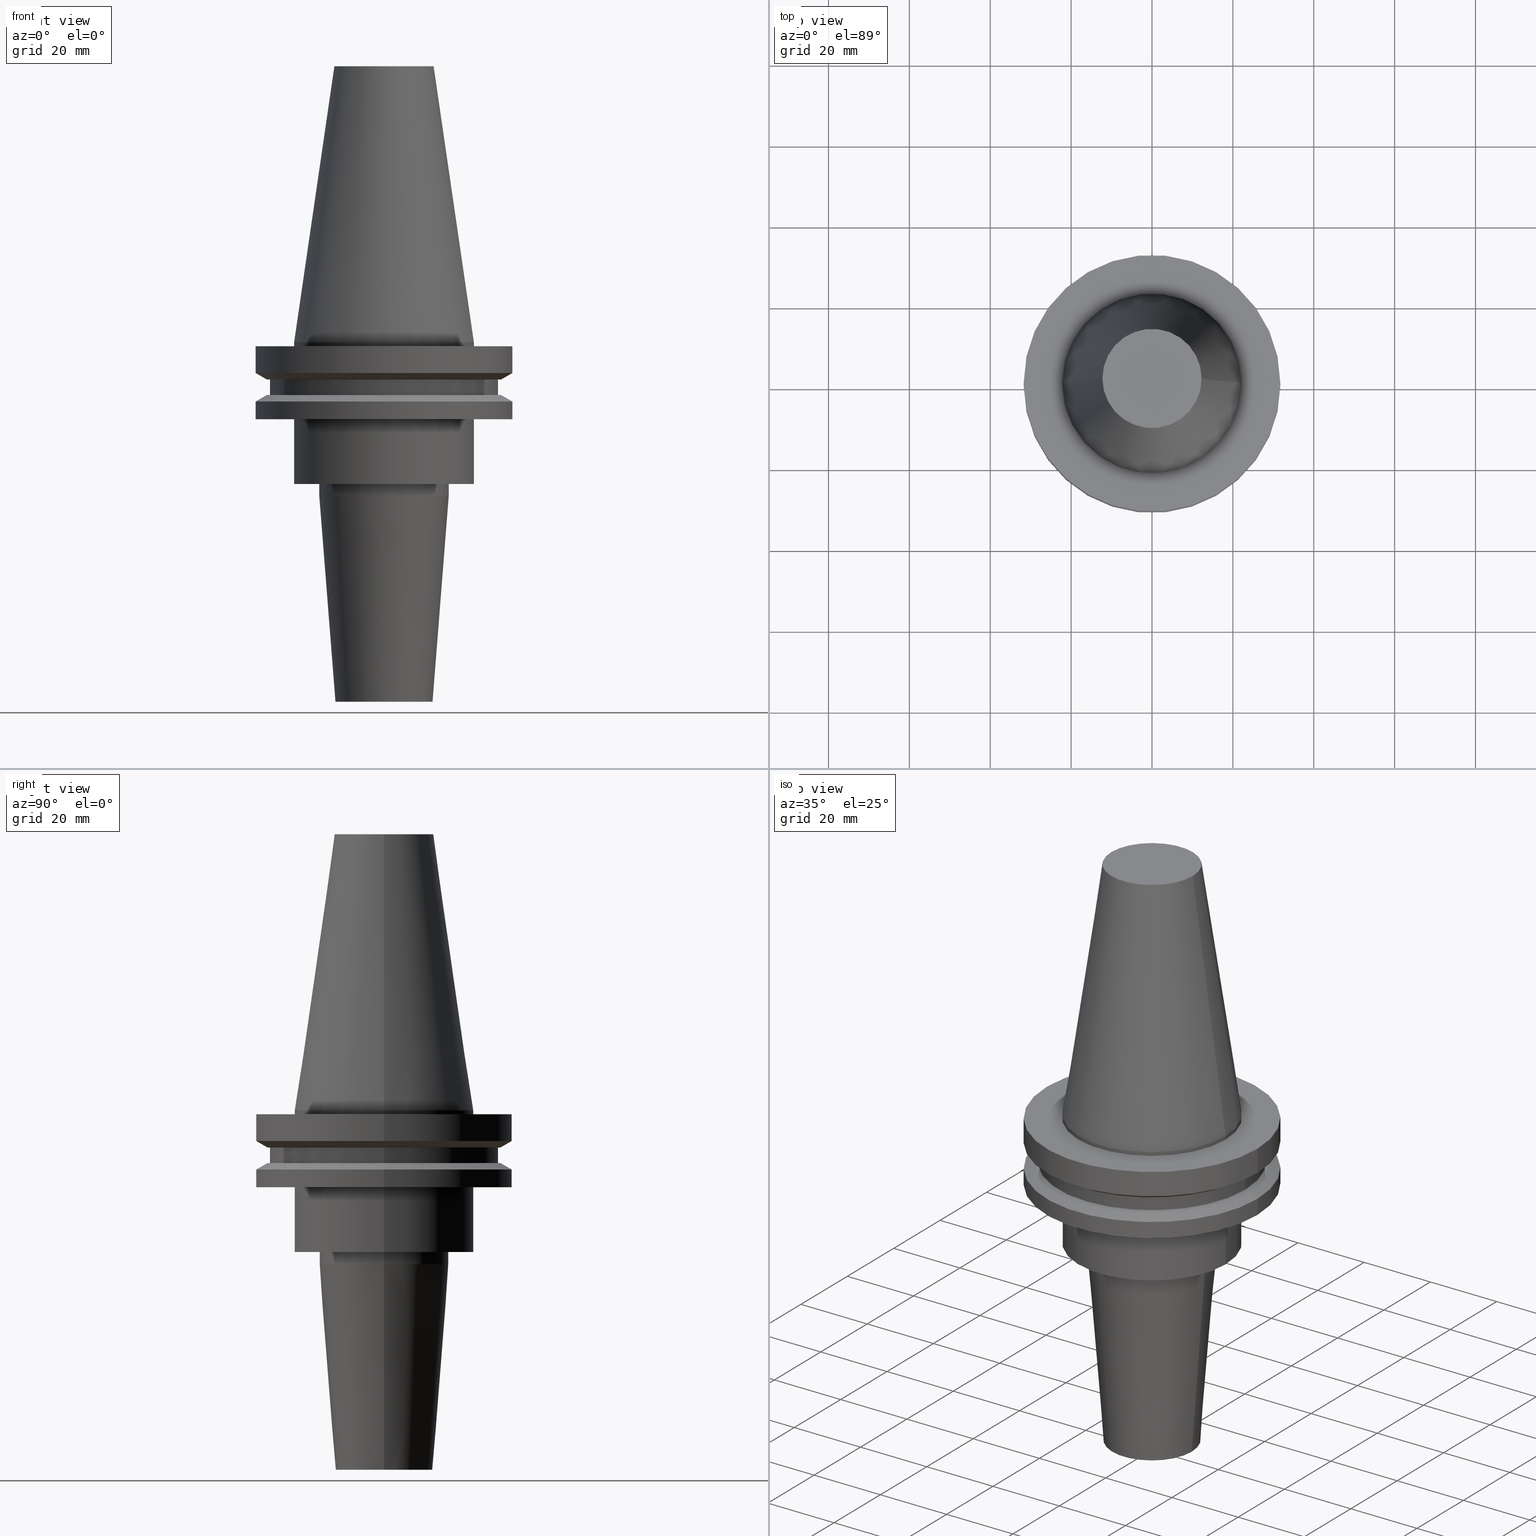
[diagram: canonical four-view strip — front | top / right | iso, engineering-drawing reading convention]
A machine part, canonical four-view strip (front | top / right | iso — engineering-drawing reading convention). The complete STEP part file that produces these views, byte-faithful:
ISO-10303-21;
HEADER;
FILE_DESCRIPTION (( 'STEP AP203' ),
    '1' );
FILE_NAME ('BCV40-SF_500-3_5.STEP',
    '2022-02-23T17:22:28',
    ( '' ),
    ( '' ),
    'SwSTEP 2.0',
    'SolidWorks 2021',
    '' );
FILE_SCHEMA (( 'CONFIG_CONTROL_DESIGN' ));
ENDSEC;

DATA;
#1 = CARTESIAN_POINT ( 'NONE',  ( 0.000000000000000000, 0.000000000000000000, -14.65472339340266572 ) ) ;
#2 = LINE ( 'NONE', #652, #561 ) ;
#3 = ORIENTED_EDGE ( 'NONE', *, *, #603, .T. ) ;
#4 = CARTESIAN_POINT ( 'NONE',  ( 28.17999999999999972, 0.000000000000000000, 68.25000000000000000 ) ) ;
#5 = EDGE_CURVE ( 'NONE', #88, #25, #452, .T. ) ;
#6 = ORIENTED_EDGE ( 'NONE', *, *, #629, .T. ) ;
#7 = CARTESIAN_POINT ( 'NONE',  ( -28.97919780457007732, 3.548928183322474856E-15, -9.205000000000005400 ) ) ;
#8 = PERSON ( 'UNSPECIFIED', 'UNSPECIFIED', 'UNSPECIFIED', ('UNSPECIFIED'), ('UNSPECIFIED'), ('UNSPECIFIED') ) ;
#9 = AXIS2_PLACEMENT_3D ( 'NONE', #198, #134, #456 ) ;
#11 = CONICAL_SURFACE ( 'NONE', #491, 31.75000000000000000, 1.047197551196597853 ) ;
#10 = AXIS2_PLACEMENT_3D ( 'NONE', #340, #147, #203 ) ;
#12 = ORIENTED_EDGE ( 'NONE', *, *, #830, .F. ) ;
#13 = ORGANIZATION ( 'UNSPECIFIED', 'UNSPECIFIED', '' ) ;
#14 = EDGE_CURVE ( 'NONE', #243, #396, #55, .T. ) ;
#15 = CARTESIAN_POINT ( 'NONE',  ( 0.000000000000000000, 0.000000000000000000, 68.25000000000000000 ) ) ;
#16 = EDGE_LOOP ( 'NONE', ( #647, #343, #584, #256 ) ) ;
#17 = VECTOR ( 'NONE', #700, 1000.000000000000000 ) ;
#18 = CARTESIAN_POINT ( 'NONE',  ( 0.000000000000000000, 0.000000000000000000, -9.204999999999991189 ) ) ;
#19 = PLANE ( 'NONE',  #759 ) ;
#20 = VERTEX_POINT ( 'NONE', #179 ) ;
#21 = DIRECTION ( 'NONE',  ( 1.000000000000000000, 0.000000000000000000, 0.000000000000000000 ) ) ;
#22 = DIRECTION ( 'NONE',  ( -0.000000000000000000, -0.000000000000000000, 1.000000000000000000 ) ) ;
#23 = CC_DESIGN_DATE_AND_TIME_ASSIGNMENT ( #316, #778, ( #54 ) ) ;
#24 = VECTOR ( 'NONE', #831, 1000.000000000000000 ) ;
#25 = VERTEX_POINT ( 'NONE', #770 ) ;
#26 = CIRCLE ( 'NONE', #190, 16.00000000000000000 ) ;
#27 = DIRECTION ( 'NONE',  ( -0.000000000000000000, -0.000000000000000000, 1.000000000000000000 ) ) ;
#28 = DIRECTION ( 'NONE',  ( -1.000000000000000000, 0.000000000000000000, -0.000000000000000000 ) ) ;
#29 = VERTEX_POINT ( 'NONE', #834 ) ;
#30 = COORDINATED_UNIVERSAL_TIME_OFFSET ( 6, 0, .BEHIND. ) ;
#31 = AXIS2_PLACEMENT_3D ( 'NONE', #847, #444, #188 ) ;
#32 = CARTESIAN_POINT ( 'NONE',  ( 0.000000000000000000, 0.000000000000000000, -52.89999999999999858 ) ) ;
#33 = ORIENTED_EDGE ( 'NONE', *, *, #124, .F. ) ;
#34 = CARTESIAN_POINT ( 'NONE',  ( 0.000000000000000000, 0.000000000000000000, -7.605276606597335842 ) ) ;
#35 = CARTESIAN_POINT ( 'NONE',  ( 0.000000000000000000, 0.000000000000000000, 0.000000000000000000 ) ) ;
#36 = DIRECTION ( 'NONE',  ( 1.000000000000000000, 0.000000000000000000, 0.000000000000000000 ) ) ;
#37 = ORIENTED_EDGE ( 'NONE', *, *, #390, .T. ) ;
#38 = CIRCLE ( 'NONE', #78, 28.17999999999999972 ) ;
#39 = EDGE_CURVE ( 'NONE', #569, #396, #223, .T. ) ;
#40 = CARTESIAN_POINT ( 'NONE',  ( 0.000000000000000000, 0.000000000000000000, -35.04999999999999716 ) ) ;
#41 = DIRECTION ( 'NONE',  ( 1.000000000000000000, 0.000000000000000000, 0.000000000000000000 ) ) ;
#42 = CIRCLE ( 'NONE', #107, 12.27178102086201150 ) ;
#43 = EDGE_LOOP ( 'NONE', ( #206, #590, #505, #366 ) ) ;
#44 = DIRECTION ( 'NONE',  ( 1.000000000000000000, 0.000000000000000000, 0.000000000000000000 ) ) ;
#45 = FACE_BOUND ( 'NONE', #535, .T. ) ;
#46 = CARTESIAN_POINT ( 'NONE',  ( 28.97919780457007732, 0.000000000000000000, -9.205000000000005400 ) ) ;
#47 = ORIENTED_EDGE ( 'NONE', *, *, #124, .T. ) ;
#48 = APPROVAL_STATUS ( 'not_yet_approved' ) ;
#49 = CARTESIAN_POINT ( 'NONE',  ( -22.22500000000000142, 2.721777511104992849E-15, -19.04999999999999716 ) ) ;
#50 = EDGE_CURVE ( 'NONE', #372, #656, #250, .T. ) ;
#51 = CARTESIAN_POINT ( 'NONE',  ( 22.22500000000000142, 2.721777511104992849E-15, 0.000000000000000000 ) ) ;
#52 = EDGE_LOOP ( 'NONE', ( #720, #753 ) ) ;
#53 = LINE ( 'NONE', #196, #626 ) ;
#54 = SECURITY_CLASSIFICATION ( '', '', #184 ) ;
#55 = LINE ( 'NONE', #51, #595 ) ;
#56 = ORIENTED_EDGE ( 'NONE', *, *, #582, .F. ) ;
#57 = FACE_OUTER_BOUND ( 'NONE', #597, .T. ) ;
#58 = ORIENTED_EDGE ( 'NONE', *, *, #60, .F. ) ;
#59 = ORIENTED_EDGE ( 'NONE', *, *, #5, .F. ) ;
#60 = EDGE_CURVE ( 'NONE', #372, #29, #399, .T. ) ;
#61 = DIRECTION ( 'NONE',  ( 1.000000000000000000, 0.000000000000000000, 0.000000000000000000 ) ) ;
#62 = LINE ( 'NONE', #565, #24 ) ;
#63 = FACE_OUTER_BOUND ( 'NONE', #16, .T. ) ;
#64 = EDGE_LOOP ( 'NONE', ( #551, #47, #697, #422 ) ) ;
#65 = CIRCLE ( 'NONE', #433, 22.22500000000000142 ) ;
#66 = EDGE_CURVE ( 'NONE', #396, #569, #842, .T. ) ;
#67 = DIRECTION ( 'NONE',  ( -0.000000000000000000, -0.000000000000000000, 1.000000000000000000 ) ) ;
#68 = CARTESIAN_POINT ( 'NONE',  ( 0.000000000000000000, 0.000000000000000000, -1.000000000000000888 ) ) ;
#69 = VERTEX_POINT ( 'NONE', #439 ) ;
#70 = AXIS2_PLACEMENT_3D ( 'NONE', #611, #265, #220 ) ;
#71 = DIRECTION ( 'NONE',  ( -0.000000000000000000, -0.000000000000000000, 1.000000000000000000 ) ) ;
#72 = ORIENTED_EDGE ( 'NONE', *, *, #302, .T. ) ;
#73 = DIRECTION ( 'NONE',  ( -0.000000000000000000, -0.000000000000000000, 1.000000000000000000 ) ) ;
#74 = ADVANCED_FACE ( 'NONE', ( #695 ), #579, .T. ) ;
#75 = UNCERTAINTY_MEASURE_WITH_UNIT (LENGTH_MEASURE( 1.000000000000000082E-05 ), #294, 'distance_accuracy_value', 'NONE');
#76 = EDGE_LOOP ( 'NONE', ( #772, #685, #777, #403 ) ) ;
#77 = DIRECTION ( 'NONE',  ( 0.000000000000000000, 0.000000000000000000, -1.000000000000000000 ) ) ;
#78 = AXIS2_PLACEMENT_3D ( 'NONE', #649, #583, #775 ) ;
#79 = ORIENTED_EDGE ( 'NONE', *, *, #552, .F. ) ;
#80 = AXIS2_PLACEMENT_3D ( 'NONE', #549, #747, #628 ) ;
#81 = DIRECTION ( 'NONE',  ( 1.000000000000000000, 0.000000000000000000, 0.000000000000000000 ) ) ;
#82 = CARTESIAN_POINT ( 'NONE',  ( 12.27178102086201150, 2.112318622904291439E-15, 68.25000000000000000 ) ) ;
#83 = EDGE_LOOP ( 'NONE', ( #338, #125 ) ) ;
#84 = EDGE_CURVE ( 'NONE', #270, #497, #98, .T. ) ;
#85 = ADVANCED_FACE ( 'NONE', ( #512, #447 ), #123, .F. ) ;
#86 = DIRECTION ( 'NONE',  ( -1.000000000000000000, 0.000000000000000000, 0.000000000000000000 ) ) ;
#87 = FACE_BOUND ( 'NONE', #636, .T. ) ;
#88 = VERTEX_POINT ( 'NONE', #516 ) ;
#89 = LINE ( 'NONE', #801, #119 ) ;
#90 = ORIENTED_EDGE ( 'NONE', *, *, #166, .T. ) ;
#91 = AXIS2_PLACEMENT_3D ( 'NONE', #15, #278, #536 ) ;
#92 = DIRECTION ( 'NONE',  ( 0.000000000000000000, 0.000000000000000000, 1.000000000000000000 ) ) ;
#93 = DIRECTION ( 'NONE',  ( 0.000000000000000000, 0.000000000000000000, -1.000000000000000000 ) ) ;
#94 = ADVANCED_FACE ( 'NONE', ( #239 ), #781, .F. ) ;
#95 = EDGE_LOOP ( 'NONE', ( #79, #797 ) ) ;
#96 = CARTESIAN_POINT ( 'NONE',  ( 0.000000000000000000, 0.000000000000000000, 0.000000000000000000 ) ) ;
#97 = DATE_AND_TIME ( #494, #669 ) ;
#98 = CIRCLE ( 'NONE', #307, 28.17999999999999972 ) ;
#99 = CARTESIAN_POINT ( 'NONE',  ( 31.74999999999999289, 0.000000000000000000, -19.04999999999999716 ) ) ;
#100 = ORIENTED_EDGE ( 'NONE', *, *, #281, .T. ) ;
#101 = EDGE_CURVE ( 'NONE', #167, #357, #763, .T. ) ;
#102 = AXIS2_PLACEMENT_3D ( 'NONE', #719, #807, #214 ) ;
#103 = DIRECTION ( 'NONE',  ( -0.000000000000000000, -0.000000000000000000, 1.000000000000000000 ) ) ;
#104 = DIRECTION ( 'NONE',  ( -1.000000000000000000, 0.000000000000000000, 0.000000000000000000 ) ) ;
#105 = ORIENTED_EDGE ( 'NONE', *, *, #721, .T. ) ;
#106 = LINE ( 'NONE', #234, #288 ) ;
#107 = AXIS2_PLACEMENT_3D ( 'NONE', #483, #821, #562 ) ;
#108 = CARTESIAN_POINT ( 'NONE',  ( 0.000000000000000000, 22.22499999999999787, -35.04999999999999716 ) ) ;
#109 = ORIENTED_EDGE ( 'NONE', *, *, #60, .T. ) ;
#110 = APPLICATION_PROTOCOL_DEFINITION ( 'international standard', 'config_control_design', 1994, #235 ) ;
#111 = EDGE_CURVE ( 'NONE', #663, #292, #623, .T. ) ;
#112 = DIRECTION ( 'NONE',  ( 1.000000000000000000, 0.000000000000000000, 0.000000000000000000 ) ) ;
#113 = DIRECTION ( 'NONE',  ( -0.000000000000000000, -0.000000000000000000, 1.000000000000000000 ) ) ;
#114 = ORIENTED_EDGE ( 'NONE', *, *, #398, .T. ) ;
#115 = PERSON_AND_ORGANIZATION_ROLE ( 'classification_officer' ) ;
#116 = CARTESIAN_POINT ( 'NONE',  ( 0.000000000000000000, 0.000000000000000000, -88.89999999999999147 ) ) ;
#117 = CARTESIAN_POINT ( 'NONE',  ( 0.000000000000000000, 0.000000000000000000, 0.000000000000000000 ) ) ;
#118 = VERTEX_POINT ( 'NONE', #640 ) ;
#119 = VECTOR ( 'NONE', #280, 1000.000000000000000 ) ;
#120 = DIRECTION ( 'NONE',  ( -0.000000000000000000, -0.000000000000000000, 1.000000000000000000 ) ) ;
#121 = LOCAL_TIME ( 11, 22, 28.00000000000000000, #321 ) ;
#122 = EDGE_CURVE ( 'NONE', #513, #118, #734, .T. ) ;
#123 = PLANE ( 'NONE',  #790 ) ;
#124 = EDGE_CURVE ( 'NONE', #332, #497, #62, .T. ) ;
#125 = ORIENTED_EDGE ( 'NONE', *, *, #486, .F. ) ;
#126 = DATE_AND_TIME ( #644, #823 ) ;
#127 = DIRECTION ( 'NONE',  ( -0.000000000000000000, -0.000000000000000000, 1.000000000000000000 ) ) ;
#128 = CARTESIAN_POINT ( 'NONE',  ( 0.000000000000000000, 0.000000000000000000, -1.000000000000000888 ) ) ;
#129 = ORIENTED_EDGE ( 'NONE', *, *, #413, .F. ) ;
#130 = EDGE_CURVE ( 'NONE', #485, #448, #65, .T. ) ;
#131 = PERSON_AND_ORGANIZATION_ROLE ( 'creator' ) ;
#132 = DIRECTION ( 'NONE',  ( 1.000000000000000000, 0.000000000000000000, 0.000000000000000000 ) ) ;
#133 = DIRECTION ( 'NONE',  ( -0.000000000000000000, -0.000000000000000000, 1.000000000000000000 ) ) ;
#134 = DIRECTION ( 'NONE',  ( -0.000000000000000000, -0.000000000000000000, 1.000000000000000000 ) ) ;
#135 = VERTEX_POINT ( 'NONE', #631 ) ;
#136 = APPROVAL_ROLE ( '' ) ;
#137 = FACE_OUTER_BOUND ( 'NONE', #272, .T. ) ;
#138 = AXIS2_PLACEMENT_3D ( 'NONE', #529, #377, #132 ) ;
#139 = AXIS2_PLACEMENT_3D ( 'NONE', #200, #263, #186 ) ;
#140 = VERTEX_POINT ( 'NONE', #46 ) ;
#141 = PLANE ( 'NONE',  #490 ) ;
#142 = CC_DESIGN_PERSON_AND_ORGANIZATION_ASSIGNMENT ( #297, #754, ( #368 ) ) ;
#143 = ORIENTED_EDGE ( 'NONE', *, *, #824, .F. ) ;
#144 = DIRECTION ( 'NONE',  ( 1.000000000000000000, 0.000000000000000000, 0.000000000000000000 ) ) ;
#145 = CONICAL_SURFACE ( 'NONE', #102, 12.00000000000000000, 0.07853981633973657062 ) ;
#146 = ORIENTED_EDGE ( 'NONE', *, *, #39, .T. ) ;
#147 = DIRECTION ( 'NONE',  ( 0.000000000000000000, 0.000000000000000000, -1.000000000000000000 ) ) ;
#148 = AXIS2_PLACEMENT_3D ( 'NONE', #567, #248, #438 ) ;
#149 = CIRCLE ( 'NONE', #148, 31.75000000000000000 ) ;
#150 = CARTESIAN_POINT ( 'NONE',  ( -16.00000000000000000, 1.959434878635765131E-15, 0.000000000000000000 ) ) ;
#151 = CIRCLE ( 'NONE', #723, 31.75000000000000000 ) ;
#152 = ORIENTED_EDGE ( 'NONE', *, *, #830, .T. ) ;
#153 = ADVANCED_FACE ( 'NONE', ( #197 ), #218, .T. ) ;
#154 = DIRECTION ( 'NONE',  ( -0.000000000000000000, -0.000000000000000000, 1.000000000000000000 ) ) ;
#155 = CARTESIAN_POINT ( 'NONE',  ( -31.75000000000000000, 3.888253587292846476E-15, 68.25000000000000000 ) ) ;
#156 = ORIENTED_EDGE ( 'NONE', *, *, #398, .F. ) ;
#157 = APPROVAL ( #713, 'UNSPECIFIED' ) ;
#158 = DIRECTION ( 'NONE',  ( -0.000000000000000000, -0.000000000000000000, 1.000000000000000000 ) ) ;
#159 = LINE ( 'NONE', #477, #416 ) ;
#160 = ORIENTED_EDGE ( 'NONE', *, *, #521, .F. ) ;
#161 = CARTESIAN_POINT ( 'NONE',  ( 12.00000000000000000, 0.000000000000000000, -88.89999999999999147 ) ) ;
#162 = CARTESIAN_POINT ( 'NONE',  ( 0.000000000000000000, 28.17999999999999972, -13.05499999999999794 ) ) ;
#163 = EDGE_LOOP ( 'NONE', ( #194, #585 ) ) ;
#164 = AXIS2_PLACEMENT_3D ( 'NONE', #213, #475, #21 ) ;
#165 = CARTESIAN_POINT ( 'NONE',  ( 0.000000000000000000, 0.000000000000000000, -14.65472339340266572 ) ) ;
#166 = EDGE_CURVE ( 'NONE', #20, #569, #853, .T. ) ;
#167 = VERTEX_POINT ( 'NONE', #455 ) ;
#168 = PERSON_AND_ORGANIZATION ( #8, #13 ) ;
#169 = CARTESIAN_POINT ( 'NONE',  ( -16.00000000000000000, 1.959434878635765131E-15, -35.04999999999999716 ) ) ;
#170 = EDGE_LOOP ( 'NONE', ( #768, #276 ) ) ;
#171 = DIRECTION ( 'NONE',  ( -0.8660254037844387076, 0.000000000000000000, -0.4999999999999998890 ) ) ;
#172 = CARTESIAN_POINT ( 'NONE',  ( 0.000000000000000000, 0.000000000000000000, -88.89999999999999147 ) ) ;
#173 = DIRECTION ( 'NONE',  ( -0.000000000000000000, -0.000000000000000000, 1.000000000000000000 ) ) ;
#174 = EDGE_CURVE ( 'NONE', #749, #140, #698, .T. ) ;
#175 = CIRCLE ( 'NONE', #381, 22.22500000000000142 ) ;
#176 =( NAMED_UNIT ( * ) SI_UNIT ( $, .STERADIAN. ) SOLID_ANGLE_UNIT ( ) );
#177 = CYLINDRICAL_SURFACE ( 'NONE', #484, 16.00000000000000000 ) ;
#178 = VECTOR ( 'NONE', #392, 999.9999999999998863 ) ;
#179 = CARTESIAN_POINT ( 'NONE',  ( -12.27178102086201150, 0.000000000000000000, 68.25000000000000000 ) ) ;
#180 = ORIENTED_EDGE ( 'NONE', *, *, #684, .T. ) ;
#181 = DIRECTION ( 'NONE',  ( -0.000000000000000000, -0.000000000000000000, 1.000000000000000000 ) ) ;
#182 = DIRECTION ( 'NONE',  ( 0.000000000000000000, -0.000000000000000000, 1.000000000000000000 ) ) ;
#183 = EDGE_LOOP ( 'NONE', ( #530, #72, #143, #160 ) ) ;
#184 = SECURITY_CLASSIFICATION_LEVEL ( 'unclassified' ) ;
#185 = ADVANCED_FACE ( 'NONE', ( #589 ), #418, .F. ) ;
#186 = DIRECTION ( 'NONE',  ( 1.000000000000000000, 0.000000000000000000, 0.000000000000000000 ) ) ;
#187 = EDGE_CURVE ( 'NONE', #88, #802, #249, .T. ) ;
#188 = DIRECTION ( 'NONE',  ( 1.000000000000000000, 0.000000000000000000, 0.000000000000000000 ) ) ;
#189 = ORIENTED_EDGE ( 'NONE', *, *, #684, .F. ) ;
#190 = AXIS2_PLACEMENT_3D ( 'NONE', #391, #840, #525 ) ;
#191 = CARTESIAN_POINT ( 'NONE',  ( 0.000000000000000000, 0.000000000000000000, 68.25000000000000000 ) ) ;
#192 = EDGE_CURVE ( 'NONE', #20, #243, #42, .T. ) ;
#193 = DIRECTION ( 'NONE',  ( 1.000000000000000000, 0.000000000000000000, 0.000000000000000000 ) ) ;
#194 = ORIENTED_EDGE ( 'NONE', *, *, #84, .T. ) ;
#195 = DATE_AND_TIME ( #581, #121 ) ;
#196 = CARTESIAN_POINT ( 'NONE',  ( -22.22500000000000142, 2.721777511104992849E-15, 68.25000000000000000 ) ) ;
#197 = FACE_OUTER_BOUND ( 'NONE', #453, .T. ) ;
#198 = CARTESIAN_POINT ( 'NONE',  ( 0.000000000000000000, 0.000000000000000000, 68.25000000000000000 ) ) ;
#199 = EDGE_LOOP ( 'NONE', ( #706, #666, #690, #632 ) ) ;
#200 = CARTESIAN_POINT ( 'NONE',  ( 0.000000000000000000, 0.000000000000000000, -9.205000000000005400 ) ) ;
#201 = ORIENTED_EDGE ( 'NONE', *, *, #762, .F. ) ;
#202 = EDGE_CURVE ( 'NONE', #716, #712, #232, .T. ) ;
#203 = DIRECTION ( 'NONE',  ( -1.000000000000000000, 0.000000000000000000, 0.000000000000000000 ) ) ;
#204 = AXIS2_PLACEMENT_3D ( 'NONE', #674, #664, #794 ) ;
#205 = CIRCLE ( 'NONE', #80, 6.349999999999994316 ) ;
#206 = ORIENTED_EDGE ( 'NONE', *, *, #252, .F. ) ;
#207 = CARTESIAN_POINT ( 'NONE',  ( -28.97919780457007732, 3.718590885307660666E-15, -9.205000000000005400 ) ) ;
#208 = ORIENTED_EDGE ( 'NONE', *, *, #101, .T. ) ;
#209 = FACE_OUTER_BOUND ( 'NONE', #745, .T. ) ;
#210 = EDGE_CURVE ( 'NONE', #712, #478, #696, .T. ) ;
#211 = DIRECTION ( 'NONE',  ( 1.000000000000000000, 0.000000000000000000, 0.000000000000000000 ) ) ;
#212 = ORIENTED_EDGE ( 'NONE', *, *, #824, .T. ) ;
#213 = CARTESIAN_POINT ( 'NONE',  ( 0.000000000000000000, 28.97919780457007732, -9.204999999999996518 ) ) ;
#214 = DIRECTION ( 'NONE',  ( 1.000000000000000000, 0.000000000000000000, 0.000000000000000000 ) ) ;
#215 = AXIS2_PLACEMENT_3D ( 'NONE', #395, #71, #333 ) ;
#216 = ADVANCED_FACE ( 'NONE', ( #87, #523 ), #748, .F. ) ;
#217 = EDGE_LOOP ( 'NONE', ( #400, #608 ) ) ;
#218 = CONICAL_SURFACE ( 'NONE', #423, 12.00000000000000000, 0.07853981633973657062 ) ;
#219 = DIRECTION ( 'NONE',  ( -1.000000000000000000, 0.000000000000000000, -0.000000000000000000 ) ) ;
#220 = DIRECTION ( 'NONE',  ( 1.000000000000000000, 0.000000000000000000, 0.000000000000000000 ) ) ;
#221 = ORIENTED_EDGE ( 'NONE', *, *, #281, .F. ) ;
#222 = DIRECTION ( 'NONE',  ( 1.000000000000000000, 0.000000000000000000, 0.000000000000000000 ) ) ;
#223 = CIRCLE ( 'NONE', #771, 22.22500000000000142 ) ;
#224 = CARTESIAN_POINT ( 'NONE',  ( 0.000000000000000000, 0.000000000000000000, -13.05499999999999794 ) ) ;
#225 = FACE_OUTER_BOUND ( 'NONE', #311, .T. ) ;
#226 = EDGE_LOOP ( 'NONE', ( #296, #843 ) ) ;
#227 = EDGE_CURVE ( 'NONE', #140, #88, #2, .T. ) ;
#228 = CARTESIAN_POINT ( 'NONE',  ( 0.000000000000000000, 6.349999999999994316, -52.89999999999999858 ) ) ;
#229 = DIRECTION ( 'NONE',  ( 1.000000000000000000, 0.000000000000000000, 0.000000000000000000 ) ) ;
#230 = ORIENTED_EDGE ( 'NONE', *, *, #293, .F. ) ;
#231 = AXIS2_PLACEMENT_3D ( 'NONE', #273, #77, #86 ) ;
#232 = LINE ( 'NONE', #827, #591 ) ;
#233 =( GEOMETRIC_REPRESENTATION_CONTEXT ( 3 ) GLOBAL_UNCERTAINTY_ASSIGNED_CONTEXT ( ( #75 ) ) GLOBAL_UNIT_ASSIGNED_CONTEXT ( ( #294, #373, #176 ) ) REPRESENTATION_CONTEXT ( 'NONE', 'WORKASPACE' ) );
#234 = CARTESIAN_POINT ( 'NONE',  ( 22.22500000000000142, 0.000000000000000000, 68.25000000000000000 ) ) ;
#235 = APPLICATION_CONTEXT ( 'configuration controlled 3d designs of mechanical parts and assemblies' ) ;
#236 = ORIENTED_EDGE ( 'NONE', *, *, #709, .T. ) ;
#237 = CARTESIAN_POINT ( 'NONE',  ( 28.97919780457008088, 3.718590885307660666E-15, -13.05499999999999794 ) ) ;
#238 = CC_DESIGN_PERSON_AND_ORGANIZATION_ASSIGNMENT ( #570, #131, ( #421 ) ) ;
#239 = FACE_OUTER_BOUND ( 'NONE', #555, .T. ) ;
#240 = DIRECTION ( 'NONE',  ( 1.000000000000000000, 0.000000000000000000, 0.000000000000000000 ) ) ;
#241 = DIRECTION ( 'NONE',  ( -0.07845909572783671404, 9.608468044709101226E-18, 0.9969173337331286300 ) ) ;
#242 = CARTESIAN_POINT ( 'NONE',  ( 0.000000000000000000, 0.000000000000000000, 0.000000000000000000 ) ) ;
#243 = VERTEX_POINT ( 'NONE', #82 ) ;
#244 = CONICAL_SURFACE ( 'NONE', #573, 22.22500000000000142, 0.1448138465474119174 ) ;
#245 = AXIS2_PLACEMENT_3D ( 'NONE', #563, #103, #240 ) ;
#246 = COORDINATED_UNIVERSAL_TIME_OFFSET ( 6, 0, .BEHIND. ) ;
#247 = ADVANCED_BREP_SHAPE_REPRESENTATION ( 'BCV40-SF_500-3_5', ( #783, #463 ), #233 ) ;
#248 = DIRECTION ( 'NONE',  ( -0.000000000000000000, -0.000000000000000000, 1.000000000000000000 ) ) ;
#249 = CIRCLE ( 'NONE', #739, 31.75000000000000000 ) ;
#250 = LINE ( 'NONE', #318, #427 ) ;
#251 = ORIENTED_EDGE ( 'NONE', *, *, #227, .T. ) ;
#252 = EDGE_CURVE ( 'NONE', #437, #478, #854, .T. ) ;
#253 = APPROVAL_DATE_TIME ( #195, #157 ) ;
#254 = DIRECTION ( 'NONE',  ( 1.000000000000000000, 0.000000000000000000, 0.000000000000000000 ) ) ;
#255 = DIRECTION ( 'NONE',  ( -0.000000000000000000, -0.000000000000000000, 1.000000000000000000 ) ) ;
#256 = ORIENTED_EDGE ( 'NONE', *, *, #122, .F. ) ;
#257 = APPROVAL_STATUS ( 'not_yet_approved' ) ;
#258 = ADVANCED_FACE ( 'NONE', ( #269 ), #19, .F. ) ;
#259 = DIRECTION ( 'NONE',  ( -0.000000000000000000, -0.000000000000000000, 1.000000000000000000 ) ) ;
#260 = DIRECTION ( 'NONE',  ( 1.000000000000000000, 0.000000000000000000, 0.000000000000000000 ) ) ;
#261 = AXIS2_PLACEMENT_3D ( 'NONE', #841, #387, #650 ) ;
#262 = AXIS2_PLACEMENT_3D ( 'NONE', #386, #67, #722 ) ;
#263 = DIRECTION ( 'NONE',  ( -0.000000000000000000, -0.000000000000000000, 1.000000000000000000 ) ) ;
#264 = CARTESIAN_POINT ( 'NONE',  ( 0.000000000000000000, 0.000000000000000000, -88.89999999999999147 ) ) ;
#265 = DIRECTION ( 'NONE',  ( -0.000000000000000000, -0.000000000000000000, 1.000000000000000000 ) ) ;
#266 = EDGE_LOOP ( 'NONE', ( #12, #430, #410, #741 ) ) ;
#267 = CYLINDRICAL_SURFACE ( 'NONE', #545, 31.75000000000000000 ) ;
#268 = EDGE_CURVE ( 'NONE', #357, #167, #389, .T. ) ;
#269 = FACE_OUTER_BOUND ( 'NONE', #170, .T. ) ;
#270 = VERTEX_POINT ( 'NONE', #291 ) ;
#271 = DIRECTION ( 'NONE',  ( -0.000000000000000000, -0.000000000000000000, 1.000000000000000000 ) ) ;
#272 = EDGE_LOOP ( 'NONE', ( #230, #388, #509, #731 ) ) ;
#273 = CARTESIAN_POINT ( 'NONE',  ( 0.000000000000000000, 0.000000000000000000, -14.65472339340266572 ) ) ;
#274 = AXIS2_PLACEMENT_3D ( 'NONE', #116, #271, #454 ) ;
#275 = AXIS2_PLACEMENT_3D ( 'NONE', #681, #487, #306 ) ;
#276 = ORIENTED_EDGE ( 'NONE', *, *, #339, .T. ) ;
#277 = ADVANCED_FACE ( 'NONE', ( #63 ), #607, .T. ) ;
#278 = DIRECTION ( 'NONE',  ( -0.000000000000000000, -0.000000000000000000, 1.000000000000000000 ) ) ;
#279 = ORIENTED_EDGE ( 'NONE', *, *, #660, .F. ) ;
#280 = DIRECTION ( 'NONE',  ( -0.000000000000000000, -0.000000000000000000, 1.000000000000000000 ) ) ;
#281 = EDGE_CURVE ( 'NONE', #292, #448, #159, .T. ) ;
#282 = VECTOR ( 'NONE', #304, 1000.000000000000000 ) ;
#283 = DIRECTION ( 'NONE',  ( 0.8660254037844387076, 1.060575238724906915E-16, -0.4999999999999998890 ) ) ;
#284 = ORIENTED_EDGE ( 'NONE', *, *, #378, .F. ) ;
#285 = PRODUCT ( 'BCV40-SF_500-3_5', 'BCV40-SF_500-3_5', '', ( #699 ) ) ;
#286 = FACE_BOUND ( 'NONE', #289, .T. ) ;
#287 = DIRECTION ( 'NONE',  ( -0.000000000000000000, -0.000000000000000000, 1.000000000000000000 ) ) ;
#288 = VECTOR ( 'NONE', #495, 1000.000000000000000 ) ;
#289 = EDGE_LOOP ( 'NONE', ( #580, #793 ) ) ;
#290 = DIRECTION ( 'NONE',  ( 1.000000000000000000, 0.000000000000000000, 0.000000000000000000 ) ) ;
#291 = CARTESIAN_POINT ( 'NONE',  ( 28.17999999999999972, 0.000000000000000000, -9.204999999999991189 ) ) ;
#292 = VERTEX_POINT ( 'NONE', #471 ) ;
#293 = EDGE_CURVE ( 'NONE', #560, #712, #415, .T. ) ;
#294 =( LENGTH_UNIT ( ) NAMED_UNIT ( * ) SI_UNIT ( .MILLI., .METRE. ) );
#295 = CARTESIAN_POINT ( 'NONE',  ( 0.000000000000000000, 0.000000000000000000, -35.04999999999999716 ) ) ;
#296 = ORIENTED_EDGE ( 'NONE', *, *, #532, .F. ) ;
#297 = PERSON_AND_ORGANIZATION ( #8, #13 ) ;
#298 = CARTESIAN_POINT ( 'NONE',  ( 31.75000000000000000, 0.000000000000000000, -14.65472339340266572 ) ) ;
#299 = EDGE_LOOP ( 'NONE', ( #687, #100, #702, #347 ) ) ;
#300 = AXIS2_PLACEMENT_3D ( 'NONE', #32, #564, #498 ) ;
#301 = AXIS2_PLACEMENT_3D ( 'NONE', #810, #480, #219 ) ;
#302 = EDGE_CURVE ( 'NONE', #69, #513, #331, .T. ) ;
#303 = DIRECTION ( 'NONE',  ( 0.000000000000000000, -0.000000000000000000, 1.000000000000000000 ) ) ;
#304 = DIRECTION ( 'NONE',  ( 0.07845909572783671404, 0.000000000000000000, 0.9969173337331286300 ) ) ;
#305 = ORIENTED_EDGE ( 'NONE', *, *, #642, .T. ) ;
#306 = DIRECTION ( 'NONE',  ( 1.000000000000000000, 0.000000000000000000, 0.000000000000000000 ) ) ;
#307 = AXIS2_PLACEMENT_3D ( 'NONE', #715, #508, #705 ) ;
#308 = DIRECTION ( 'NONE',  ( 0.000000000000000000, -0.000000000000000000, 1.000000000000000000 ) ) ;
#309 = CC_DESIGN_DATE_AND_TIME_ASSIGNMENT ( #849, #514, ( #368 ) ) ;
#310 = CARTESIAN_POINT ( 'NONE',  ( 31.75000000000000000, 0.000000000000000000, 68.25000000000000000 ) ) ;
#311 = EDGE_LOOP ( 'NONE', ( #612, #114, #408, #426 ) ) ;
#312 = DIRECTION ( 'NONE',  ( -0.000000000000000000, -0.000000000000000000, 1.000000000000000000 ) ) ;
#313 = DIRECTION ( 'NONE',  ( -0.000000000000000000, -0.000000000000000000, 1.000000000000000000 ) ) ;
#314 = ORIENTED_EDGE ( 'NONE', *, *, #616, .F. ) ;
#315 = LOCAL_TIME ( 11, 22, 28.00000000000000000, #688 ) ;
#316 = DATE_AND_TIME ( #328, #533 ) ;
#317 = CYLINDRICAL_SURFACE ( 'NONE', #262, 31.75000000000000000 ) ;
#318 = CARTESIAN_POINT ( 'NONE',  ( 6.349999999999996980, 0.000000000000000000, 0.000000000000000000 ) ) ;
#319 = ORIENTED_EDGE ( 'NONE', *, *, #378, .T. ) ;
#320 = ADVANCED_FACE ( 'NONE', ( #225 ), #346, .T. ) ;
#321 = COORDINATED_UNIVERSAL_TIME_OFFSET ( 6, 0, .BEHIND. ) ;
#322 = CYLINDRICAL_SURFACE ( 'NONE', #694, 28.17999999999999972 ) ;
#323 = DIRECTION ( 'NONE',  ( -0.000000000000000000, -0.000000000000000000, 1.000000000000000000 ) ) ;
#324 = ORIENTED_EDGE ( 'NONE', *, *, #192, .F. ) ;
#325 = CARTESIAN_POINT ( 'NONE',  ( 6.349999999999994316, 0.000000000000000000, -52.89999999999999858 ) ) ;
#326 = CARTESIAN_POINT ( 'NONE',  ( 0.000000000000000000, 0.000000000000000000, -9.205000000000005400 ) ) ;
#327 = CARTESIAN_POINT ( 'NONE',  ( 0.000000000000000000, 0.000000000000000000, 0.000000000000000000 ) ) ;
#328 = CALENDAR_DATE ( 2022, 23, 2 ) ;
#329 = CIRCLE ( 'NONE', #780, 28.17999999999999972 ) ;
#330 = CARTESIAN_POINT ( 'NONE',  ( -31.74999999999999289, 3.888253587292845687E-15, -19.04999999999999716 ) ) ;
#331 = LINE ( 'NONE', #150, #460 ) ;
#332 = VERTEX_POINT ( 'NONE', #550 ) ;
#333 = DIRECTION ( 'NONE',  ( 1.000000000000000000, 0.000000000000000000, 0.000000000000000000 ) ) ;
#334 = CLOSED_SHELL ( 'NONE', ( #185, #153, #402, #692, #667, #850, #586, #364, #639, #74, #673, #703, #258, #85, #756, #355, #540, #746, #216, #665, #774, #542, #320, #787, #496, #277, #337, #691, #94, #800 ) ) ;
#335 = ORIENTED_EDGE ( 'NONE', *, *, #293, .T. ) ;
#336 = DIRECTION ( 'NONE',  ( -1.000000000000000000, 0.000000000000000000, 0.000000000000000000 ) ) ;
#337 = ADVANCED_FACE ( 'NONE', ( #541 ), #145, .T. ) ;
#338 = ORIENTED_EDGE ( 'NONE', *, *, #804, .F. ) ;
#339 = EDGE_CURVE ( 'NONE', #243, #20, #846, .T. ) ;
#340 = CARTESIAN_POINT ( 'NONE',  ( 0.000000000000000000, 0.000000000000000000, 0.000000000000000000 ) ) ;
#341 = AXIS2_PLACEMENT_3D ( 'NONE', #1, #127, #254 ) ;
#342 = APPROVAL_PERSON_ORGANIZATION ( #773, #472, #136 ) ;
#343 = ORIENTED_EDGE ( 'NONE', *, *, #648, .T. ) ;
#344 = EDGE_CURVE ( 'NONE', #826, #805, #816, .T. ) ;
#345 = FACE_OUTER_BOUND ( 'NONE', #643, .T. ) ;
#346 = CYLINDRICAL_SURFACE ( 'NONE', #9, 31.75000000000000000 ) ;
#347 = ORIENTED_EDGE ( 'NONE', *, *, #642, .F. ) ;
#348 = CARTESIAN_POINT ( 'NONE',  ( 0.000000000000000000, 0.000000000000000000, -19.04999999999999716 ) ) ;
#349 = DIRECTION ( 'NONE',  ( 0.000000000000000000, 0.000000000000000000, -1.000000000000000000 ) ) ;
#350 = ORIENTED_EDGE ( 'NONE', *, *, #187, .F. ) ;
#351 = PRODUCT_DEFINITION_SHAPE ( 'NONE', 'NONE',  #368 ) ;
#352 = DIRECTION ( 'NONE',  ( 1.000000000000000000, 0.000000000000000000, 0.000000000000000000 ) ) ;
#353 = PLANE ( 'NONE',  #164 ) ;
#354 = CIRCLE ( 'NONE', #274, 12.00000000000000000 ) ;
#355 = ADVANCED_FACE ( 'NONE', ( #374, #45 ), #554, .F. ) ;
#356 = APPROVAL_PERSON_ORGANIZATION ( #633, #442, #428 ) ;
#357 = VERTEX_POINT ( 'NONE', #429 ) ;
#358 = APPLICATION_PROTOCOL_DEFINITION ( 'international standard', 'config_control_design', 1994, #796 ) ;
#359 = LINE ( 'NONE', #752, #445 ) ;
#360 = ORIENTED_EDGE ( 'NONE', *, *, #532, .T. ) ;
#361 = APPROVAL_DATE_TIME ( #97, #442 ) ;
#362 = CARTESIAN_POINT ( 'NONE',  ( -12.00000000000000000, 1.469576158976823947E-15, -88.89999999999999147 ) ) ;
#363 = EDGE_LOOP ( 'NONE', ( #360, #393, #350, #675 ) ) ;
#364 = ADVANCED_FACE ( 'NONE', ( #683 ), #11, .T. ) ;
#365 = DIRECTION ( 'NONE',  ( -0.000000000000000000, -0.000000000000000000, 1.000000000000000000 ) ) ;
#366 = ORIENTED_EDGE ( 'NONE', *, *, #210, .T. ) ;
#367 = AXIS2_PLACEMENT_3D ( 'NONE', #295, #769, #36 ) ;
#368 = PRODUCT_DEFINITION ( 'UNKNOWN', '', #421, #537 ) ;
#369 = PLANE ( 'NONE',  #575 ) ;
#370 = LINE ( 'NONE', #630, #766 ) ;
#371 = DIRECTION ( 'NONE',  ( 1.000000000000000000, 0.000000000000000000, 0.000000000000000000 ) ) ;
#372 = VERTEX_POINT ( 'NONE', #819 ) ;
#373 =( NAMED_UNIT ( * ) PLANE_ANGLE_UNIT ( ) SI_UNIT ( $, .RADIAN. ) );
#374 = FACE_OUTER_BOUND ( 'NONE', #95, .T. ) ;
#375 = CARTESIAN_POINT ( 'NONE',  ( 0.000000000000000000, 0.000000000000000000, -35.04999999999999716 ) ) ;
#376 = ORIENTED_EDGE ( 'NONE', *, *, #506, .F. ) ;
#377 = DIRECTION ( 'NONE',  ( -0.000000000000000000, -0.000000000000000000, 1.000000000000000000 ) ) ;
#378 = EDGE_CURVE ( 'NONE', #789, #69, #833, .T. ) ;
#379 = DIRECTION ( 'NONE',  ( 1.000000000000000000, 0.000000000000000000, 0.000000000000000000 ) ) ;
#380 = ORIENTED_EDGE ( 'NONE', *, *, #730, .T. ) ;
#381 = AXIS2_PLACEMENT_3D ( 'NONE', #348, #73, #404 ) ;
#382 = PERSON_AND_ORGANIZATION ( #8, #13 ) ;
#383 = CARTESIAN_POINT ( 'NONE',  ( 0.000000000000000000, 0.000000000000000000, -1.000000000000000888 ) ) ;
#384 = DIRECTION ( 'NONE',  ( 1.000000000000000000, 0.000000000000000000, 0.000000000000000000 ) ) ;
#385 = ORIENTED_EDGE ( 'NONE', *, *, #814, .F. ) ;
#386 = CARTESIAN_POINT ( 'NONE',  ( 0.000000000000000000, 0.000000000000000000, 68.25000000000000000 ) ) ;
#387 = DIRECTION ( 'NONE',  ( -0.000000000000000000, -0.000000000000000000, 1.000000000000000000 ) ) ;
#388 = ORIENTED_EDGE ( 'NONE', *, *, #799, .T. ) ;
#389 = CIRCLE ( 'NONE', #676, 22.22500000000000142 ) ;
#390 = EDGE_CURVE ( 'NONE', #29, #372, #519, .T. ) ;
#391 = CARTESIAN_POINT ( 'NONE',  ( 0.000000000000000000, 0.000000000000000000, -38.07518105529580055 ) ) ;
#392 = DIRECTION ( 'NONE',  ( -0.1443082272672999711, 0.000000000000000000, -0.9895327864921755756 ) ) ;
#393 = ORIENTED_EDGE ( 'NONE', *, *, #735, .T. ) ;
#394 = AXIS2_PLACEMENT_3D ( 'NONE', #604, #158, #144 ) ;
#395 = CARTESIAN_POINT ( 'NONE',  ( 0.000000000000000000, 0.000000000000000000, -19.04999999999999716 ) ) ;
#396 = VERTEX_POINT ( 'NONE', #502 ) ;
#397 = FACE_OUTER_BOUND ( 'NONE', #457, .T. ) ;
#398 = EDGE_CURVE ( 'NONE', #802, #88, #149, .T. ) ;
#399 = CIRCLE ( 'NONE', #743, 6.349999999999999645 ) ;
#400 = ORIENTED_EDGE ( 'NONE', *, *, #111, .F. ) ;
#401 = CARTESIAN_POINT ( 'NONE',  ( -28.97919780457008088, 0.000000000000000000, -13.05499999999999794 ) ) ;
#402 = ADVANCED_FACE ( 'NONE', ( #689 ), #177, .T. ) ;
#403 = ORIENTED_EDGE ( 'NONE', *, *, #50, .F. ) ;
#404 = DIRECTION ( 'NONE',  ( 1.000000000000000000, 0.000000000000000000, 0.000000000000000000 ) ) ;
#405 = AXIS2_PLACEMENT_3D ( 'NONE', #659, #451, #61 ) ;
#406 = CIRCLE ( 'NONE', #682, 28.97919780457008088 ) ;
#407 = DIRECTION ( 'NONE',  ( -0.000000000000000000, -0.000000000000000000, 1.000000000000000000 ) ) ;
#408 = ORIENTED_EDGE ( 'NONE', *, *, #5, .T. ) ;
#409 = CARTESIAN_POINT ( 'NONE',  ( -31.75000000000000000, 3.888253587292846476E-15, -14.65472339340266572 ) ) ;
#410 = ORIENTED_EDGE ( 'NONE', *, *, #660, .T. ) ;
#411 = DIRECTION ( 'NONE',  ( -0.000000000000000000, -0.000000000000000000, 1.000000000000000000 ) ) ;
#412 = CC_DESIGN_SECURITY_CLASSIFICATION ( #54, ( #421 ) ) ;
#413 = EDGE_CURVE ( 'NONE', #493, #478, #359, .T. ) ;
#414 = DIRECTION ( 'NONE',  ( -0.8660254037844389297, 1.060575238724907285E-16, 0.4999999999999995004 ) ) ;
#415 = LINE ( 'NONE', #155, #571 ) ;
#416 = VECTOR ( 'NONE', #671, 1000.000000000000000 ) ;
#417 = ORIENTED_EDGE ( 'NONE', *, *, #709, .F. ) ;
#418 = CYLINDRICAL_SURFACE ( 'NONE', #726, 6.349999999999996980 ) ;
#419 = CARTESIAN_POINT ( 'NONE',  ( 22.22500000000000142, 0.000000000000000000, -19.04999999999999716 ) ) ;
#420 = CIRCLE ( 'NONE', #405, 28.97919780457007732 ) ;
#421 = PRODUCT_DEFINITION_FORMATION_WITH_SPECIFIED_SOURCE ( 'ANY', '', #285, .NOT_KNOWN. ) ;
#422 = ORIENTED_EDGE ( 'NONE', *, *, #603, .F. ) ;
#423 = AXIS2_PLACEMENT_3D ( 'NONE', #264, #133, #522 ) ;
#424 = DIRECTION ( 'NONE',  ( 1.000000000000000000, 0.000000000000000000, 0.000000000000000000 ) ) ;
#425 = CYLINDRICAL_SURFACE ( 'NONE', #436, 22.22500000000000142 ) ;
#426 = ORIENTED_EDGE ( 'NONE', *, *, #568, .F. ) ;
#427 = VECTOR ( 'NONE', #173, 1000.000000000000000 ) ;
#428 = APPROVAL_ROLE ( '' ) ;
#429 = CARTESIAN_POINT ( 'NONE',  ( -22.22500000000000142, 2.721777511104992849E-15, -1.000000000000000888 ) ) ;
#430 = ORIENTED_EDGE ( 'NONE', *, *, #252, .T. ) ;
#431 = EDGE_CURVE ( 'NONE', #29, #524, #572, .T. ) ;
#432 = CARTESIAN_POINT ( 'NONE',  ( 16.00000000000000000, 0.000000000000000000, -38.07518105529580055 ) ) ;
#433 = AXIS2_PLACEMENT_3D ( 'NONE', #761, #435, #371 ) ;
#434 = DIRECTION ( 'NONE',  ( -0.000000000000000000, -0.000000000000000000, 1.000000000000000000 ) ) ;
#435 = DIRECTION ( 'NONE',  ( -0.000000000000000000, -0.000000000000000000, 1.000000000000000000 ) ) ;
#436 = AXIS2_PLACEMENT_3D ( 'NONE', #686, #557, #693 ) ;
#437 = VERTEX_POINT ( 'NONE', #237 ) ;
#438 = DIRECTION ( 'NONE',  ( 1.000000000000000000, 0.000000000000000000, 0.000000000000000000 ) ) ;
#439 = CARTESIAN_POINT ( 'NONE',  ( -16.00000000000000000, 1.959434878635765131E-15, -38.07518105529580055 ) ) ;
#440 = ORIENTED_EDGE ( 'NONE', *, *, #268, .T. ) ;
#441 = CALENDAR_DATE ( 2022, 23, 2 ) ;
#442 = APPROVAL ( #48, 'UNSPECIFIED' ) ;
#443 = DIRECTION ( 'NONE',  ( 1.000000000000000000, 0.000000000000000000, 0.000000000000000000 ) ) ;
#444 = DIRECTION ( 'NONE',  ( -0.000000000000000000, -0.000000000000000000, 1.000000000000000000 ) ) ;
#445 = VECTOR ( 'NONE', #365, 1000.000000000000000 ) ;
#446 = CARTESIAN_POINT ( 'NONE',  ( 22.22500000000000142, 0.000000000000000000, 68.25000000000000000 ) ) ;
#447 = FACE_OUTER_BOUND ( 'NONE', #217, .T. ) ;
#448 = VERTEX_POINT ( 'NONE', #49 ) ;
#449 = AXIS2_PLACEMENT_3D ( 'NONE', #383, #181, #511 ) ;
#450 = CC_DESIGN_APPROVAL ( #157, ( #421 ) ) ;
#451 = DIRECTION ( 'NONE',  ( -0.000000000000000000, -0.000000000000000000, 1.000000000000000000 ) ) ;
#452 = LINE ( 'NONE', #310, #729 ) ;
#453 = EDGE_LOOP ( 'NONE', ( #6, #319, #385, #784 ) ) ;
#454 = DIRECTION ( 'NONE',  ( 1.000000000000000000, 0.000000000000000000, 0.000000000000000000 ) ) ;
#455 = CARTESIAN_POINT ( 'NONE',  ( 22.22500000000000142, 0.000000000000000000, -1.000000000000000888 ) ) ;
#456 = DIRECTION ( 'NONE',  ( 1.000000000000000000, 0.000000000000000000, 0.000000000000000000 ) ) ;
#457 = EDGE_LOOP ( 'NONE', ( #208, #482, #679, #376 ) ) ;
#458 = EDGE_CURVE ( 'NONE', #292, #663, #531, .T. ) ;
#459 = CARTESIAN_POINT ( 'NONE',  ( 0.000000000000000000, 0.000000000000000000, 68.25000000000000000 ) ) ;
#460 = VECTOR ( 'NONE', #287, 1000.000000000000000 ) ;
#461 = ORIENTED_EDGE ( 'NONE', *, *, #187, .T. ) ;
#462 = CIRCLE ( 'NONE', #215, 31.74999999999999289 ) ;
#463 = AXIS2_PLACEMENT_3D ( 'NONE', #35, #92, #424 ) ;
#464 = DIRECTION ( 'NONE',  ( 1.000000000000000000, 0.000000000000000000, 0.000000000000000000 ) ) ;
#465 = ORIENTED_EDGE ( 'NONE', *, *, #804, .T. ) ;
#466 = AXIS2_PLACEMENT_3D ( 'NONE', #625, #308, #112 ) ;
#467 = CYLINDRICAL_SURFACE ( 'NONE', #657, 22.22500000000000142 ) ;
#468 = EDGE_CURVE ( 'NONE', #25, #135, #151, .T. ) ;
#469 = EDGE_LOOP ( 'NONE', ( #314, #440, #724, #808 ) ) ;
#470 = CARTESIAN_POINT ( 'NONE',  ( 0.000000000000000000, 12.00000000000000000, -88.89999999999999147 ) ) ;
#471 = CARTESIAN_POINT ( 'NONE',  ( -22.22499999999999787, 2.721777511104992454E-15, -35.04999999999999716 ) ) ;
#472 = APPROVAL ( #257, 'UNSPECIFIED' ) ;
#473 = EDGE_LOOP ( 'NONE', ( #284, #236, #615, #576 ) ) ;
#474 = AXIS2_PLACEMENT_3D ( 'NONE', #117, #113, #499 ) ;
#475 = DIRECTION ( 'NONE',  ( 0.000000000000000000, -0.000000000000000000, 1.000000000000000000 ) ) ;
#476 = CIRCLE ( 'NONE', #449, 31.75000000000000000 ) ;
#477 = CARTESIAN_POINT ( 'NONE',  ( -22.22500000000000142, 2.721777511104992849E-15, 68.25000000000000000 ) ) ;
#478 = VERTEX_POINT ( 'NONE', #298 ) ;
#479 = CC_DESIGN_PERSON_AND_ORGANIZATION_ASSIGNMENT ( #382, #844, ( #421 ) ) ;
#480 = DIRECTION ( 'NONE',  ( 0.000000000000000000, 0.000000000000000000, -1.000000000000000000 ) ) ;
#481 = DIRECTION ( 'NONE',  ( -1.000000000000000000, 0.000000000000000000, -0.000000000000000000 ) ) ;
#482 = ORIENTED_EDGE ( 'NONE', *, *, #616, .T. ) ;
#483 = CARTESIAN_POINT ( 'NONE',  ( 0.000000000000000000, 0.000000000000000000, 68.25000000000000000 ) ) ;
#484 = AXIS2_PLACEMENT_3D ( 'NONE', #619, #312, #507 ) ;
#485 = VERTEX_POINT ( 'NONE', #419 ) ;
#486 = EDGE_CURVE ( 'NONE', #524, #656, #795, .T. ) ;
#487 = DIRECTION ( 'NONE',  ( -0.000000000000000000, -0.000000000000000000, 1.000000000000000000 ) ) ;
#488 = EDGE_CURVE ( 'NONE', #332, #593, #329, .T. ) ;
#489 = FACE_OUTER_BOUND ( 'NONE', #469, .T. ) ;
#491 = AXIS2_PLACEMENT_3D ( 'NONE', #165, #93, #104 ) ;
#490 = AXIS2_PLACEMENT_3D ( 'NONE', #470, #609, #290 ) ;
#492 = APPROVAL_PERSON_ORGANIZATION ( #577, #157, #510 ) ;
#493 = VERTEX_POINT ( 'NONE', #99 ) ;
#494 = CALENDAR_DATE ( 2022, 23, 2 ) ;
#495 = DIRECTION ( 'NONE',  ( -0.000000000000000000, -0.000000000000000000, 1.000000000000000000 ) ) ;
#496 = ADVANCED_FACE ( 'NONE', ( #489 ), #425, .T. ) ;
#497 = VERTEX_POINT ( 'NONE', #825 ) ;
#498 = DIRECTION ( 'NONE',  ( 1.000000000000000000, 0.000000000000000000, 0.000000000000000000 ) ) ;
#499 = DIRECTION ( 'NONE',  ( 1.000000000000000000, 0.000000000000000000, 0.000000000000000000 ) ) ;
#500 = DIRECTION ( 'NONE',  ( 1.000000000000000000, 0.000000000000000000, 0.000000000000000000 ) ) ;
#501 = AXIS2_PLACEMENT_3D ( 'NONE', #375, #255, #635 ) ;
#502 = CARTESIAN_POINT ( 'NONE',  ( 22.22500000000000142, 2.721777511104992849E-15, 0.000000000000000000 ) ) ;
#503 = DIRECTION ( 'NONE',  ( -0.000000000000000000, -0.000000000000000000, 1.000000000000000000 ) ) ;
#504 = CIRCLE ( 'NONE', #394, 12.00000000000000000 ) ;
#505 = ORIENTED_EDGE ( 'NONE', *, *, #202, .T. ) ;
#506 = EDGE_CURVE ( 'NONE', #167, #396, #106, .T. ) ;
#507 = DIRECTION ( 'NONE',  ( 1.000000000000000000, 0.000000000000000000, 0.000000000000000000 ) ) ;
#508 = DIRECTION ( 'NONE',  ( -0.000000000000000000, -0.000000000000000000, 1.000000000000000000 ) ) ;
#509 = ORIENTED_EDGE ( 'NONE', *, *, #413, .T. ) ;
#510 = APPROVAL_ROLE ( '' ) ;
#511 = DIRECTION ( 'NONE',  ( 1.000000000000000000, 0.000000000000000000, 0.000000000000000000 ) ) ;
#512 = FACE_BOUND ( 'NONE', #736, .T. ) ;
#513 = VERTEX_POINT ( 'NONE', #169 ) ;
#514 = DATE_TIME_ROLE ( 'creation_date' ) ;
#515 = DIRECTION ( 'NONE',  ( 1.000000000000000000, 0.000000000000000000, 0.000000000000000000 ) ) ;
#516 = CARTESIAN_POINT ( 'NONE',  ( 31.75000000000000000, 0.000000000000000000, -7.605276606597335842 ) ) ;
#517 = CIRCLE ( 'NONE', #204, 28.97919780457008088 ) ;
#518 = AXIS2_PLACEMENT_3D ( 'NONE', #566, #624, #553 ) ;
#519 = CIRCLE ( 'NONE', #737, 6.349999999999999645 ) ;
#520 = LINE ( 'NONE', #4, #610 ) ;
#521 = EDGE_CURVE ( 'NONE', #805, #118, #370, .T. ) ;
#522 = DIRECTION ( 'NONE',  ( 1.000000000000000000, 0.000000000000000000, 0.000000000000000000 ) ) ;
#523 = FACE_OUTER_BOUND ( 'NONE', #820, .T. ) ;
#524 = VERTEX_POINT ( 'NONE', #707 ) ;
#525 = DIRECTION ( 'NONE',  ( 1.000000000000000000, 0.000000000000000000, 0.000000000000000000 ) ) ;
#526 = DIRECTION ( 'NONE',  ( -0.000000000000000000, -0.000000000000000000, 1.000000000000000000 ) ) ;
#527 = ORIENTED_EDGE ( 'NONE', *, *, #122, .T. ) ;
#528 = AXIS2_PLACEMENT_3D ( 'NONE', #327, #526, #211 ) ;
#529 = CARTESIAN_POINT ( 'NONE',  ( 0.000000000000000000, 0.000000000000000000, 68.25000000000000000 ) ) ;
#530 = ORIENTED_EDGE ( 'NONE', *, *, #814, .T. ) ;
#531 = CIRCLE ( 'NONE', #367, 22.22499999999999787 ) ;
#532 = EDGE_CURVE ( 'NONE', #140, #749, #420, .T. ) ;
#533 = LOCAL_TIME ( 11, 22, 28.00000000000000000, #246 ) ;
#534 = CYLINDRICAL_SURFACE ( 'NONE', #91, 22.22500000000000142 ) ;
#535 = EDGE_LOOP ( 'NONE', ( #627, #180 ) ) ;
#536 = DIRECTION ( 'NONE',  ( 1.000000000000000000, 0.000000000000000000, 0.000000000000000000 ) ) ;
#537 = DESIGN_CONTEXT ( 'detailed design', #235, 'design' ) ;
#538 = ORIENTED_EDGE ( 'NONE', *, *, #488, .T. ) ;
#539 = FACE_BOUND ( 'NONE', #163, .T. ) ;
#540 = ADVANCED_FACE ( 'NONE', ( #137 ), #317, .T. ) ;
#541 = FACE_OUTER_BOUND ( 'NONE', #473, .T. ) ;
#542 = ADVANCED_FACE ( 'NONE', ( #714 ), #809, .T. ) ;
#543 = EDGE_LOOP ( 'NONE', ( #848, #335, #279, #129 ) ) ;
#544 = PLANE ( 'NONE',  #301 ) ;
#545 = AXIS2_PLACEMENT_3D ( 'NONE', #459, #154, #464 ) ;
#546 = DIRECTION ( 'NONE',  ( 1.000000000000000000, 0.000000000000000000, 0.000000000000000000 ) ) ;
#547 = AXIS2_PLACEMENT_3D ( 'NONE', #162, #733, #28 ) ;
#548 = EDGE_LOOP ( 'NONE', ( #109, #37 ) ) ;
#549 = CARTESIAN_POINT ( 'NONE',  ( 0.000000000000000000, 0.000000000000000000, -52.89999999999999858 ) ) ;
#550 = CARTESIAN_POINT ( 'NONE',  ( -28.17999999999999972, 3.451054679997241634E-15, -13.05499999999999794 ) ) ;
#551 = ORIENTED_EDGE ( 'NONE', *, *, #582, .T. ) ;
#552 = EDGE_CURVE ( 'NONE', #493, #560, #462, .T. ) ;
#553 = DIRECTION ( 'NONE',  ( 1.000000000000000000, 0.000000000000000000, 0.000000000000000000 ) ) ;
#554 = PLANE ( 'NONE',  #466 ) ;
#555 = EDGE_LOOP ( 'NONE', ( #599, #58, #646, #465 ) ) ;
#556 = DIRECTION ( 'NONE',  ( -0.000000000000000000, -0.000000000000000000, 1.000000000000000000 ) ) ;
#557 = DIRECTION ( 'NONE',  ( -0.000000000000000000, -0.000000000000000000, 1.000000000000000000 ) ) ;
#558 = VECTOR ( 'NONE', #578, 1000.000000000000000 ) ;
#559 = CIRCLE ( 'NONE', #518, 31.74999999999999289 ) ;
#560 = VERTEX_POINT ( 'NONE', #330 ) ;
#561 = VECTOR ( 'NONE', #655, 1000.000000000000000 ) ;
#562 = DIRECTION ( 'NONE',  ( 1.000000000000000000, 0.000000000000000000, 0.000000000000000000 ) ) ;
#563 = CARTESIAN_POINT ( 'NONE',  ( 0.000000000000000000, 0.000000000000000000, -38.07518105529580055 ) ) ;
#564 = DIRECTION ( 'NONE',  ( -0.000000000000000000, -0.000000000000000000, 1.000000000000000000 ) ) ;
#565 = CARTESIAN_POINT ( 'NONE',  ( -28.17999999999999972, 3.451054679997241634E-15, 68.25000000000000000 ) ) ;
#566 = CARTESIAN_POINT ( 'NONE',  ( 0.000000000000000000, 0.000000000000000000, -19.04999999999999716 ) ) ;
#567 = CARTESIAN_POINT ( 'NONE',  ( 0.000000000000000000, 0.000000000000000000, -7.605276606597335842 ) ) ;
#568 = EDGE_CURVE ( 'NONE', #135, #25, #476, .T. ) ;
#569 = VERTEX_POINT ( 'NONE', #587 ) ;
#570 = PERSON_AND_ORGANIZATION ( #8, #13 ) ;
#571 = VECTOR ( 'NONE', #22, 1000.000000000000000 ) ;
#572 = LINE ( 'NONE', #765, #17 ) ;
#573 = AXIS2_PLACEMENT_3D ( 'NONE', #806, #677, #336 ) ;
#574 = DIRECTION ( 'NONE',  ( -0.000000000000000000, -0.000000000000000000, 1.000000000000000000 ) ) ;
#575 = AXIS2_PLACEMENT_3D ( 'NONE', #228, #303, #758 ) ;
#576 = ORIENTED_EDGE ( 'NONE', *, *, #648, .F. ) ;
#577 = PERSON_AND_ORGANIZATION ( #8, #13 ) ;
#578 = DIRECTION ( 'NONE',  ( -0.000000000000000000, -0.000000000000000000, 1.000000000000000000 ) ) ;
#579 = CYLINDRICAL_SURFACE ( 'NONE', #31, 22.22500000000000142 ) ;
#580 = ORIENTED_EDGE ( 'NONE', *, *, #101, .F. ) ;
#581 = CALENDAR_DATE ( 2022, 23, 2 ) ;
#582 = EDGE_CURVE ( 'NONE', #593, #332, #38, .T. ) ;
#583 = DIRECTION ( 'NONE',  ( -0.000000000000000000, -0.000000000000000000, 1.000000000000000000 ) ) ;
#584 = ORIENTED_EDGE ( 'NONE', *, *, #521, .T. ) ;
#585 = ORIENTED_EDGE ( 'NONE', *, *, #762, .T. ) ;
#586 = ADVANCED_FACE ( 'NONE', ( #594 ), #592, .T. ) ;
#587 = CARTESIAN_POINT ( 'NONE',  ( -22.22500000000000142, 0.000000000000000000, 0.000000000000000000 ) ) ;
#588 = AXIS2_PLACEMENT_3D ( 'NONE', #128, #313, #379 ) ;
#589 = FACE_OUTER_BOUND ( 'NONE', #76, .T. ) ;
#590 = ORIENTED_EDGE ( 'NONE', *, *, #721, .F. ) ;
#591 = VECTOR ( 'NONE', #171, 1000.000000000000000 ) ;
#592 = CYLINDRICAL_SURFACE ( 'NONE', #638, 28.17999999999999972 ) ;
#593 = VERTEX_POINT ( 'NONE', #792 ) ;
#594 = FACE_OUTER_BOUND ( 'NONE', #64, .T. ) ;
#595 = VECTOR ( 'NONE', #838, 999.9999999999998863 ) ;
#596 = CC_DESIGN_PERSON_AND_ORGANIZATION_ASSIGNMENT ( #168, #613, ( #285 ) ) ;
#597 = EDGE_LOOP ( 'NONE', ( #33, #538, #3, #201 ) ) ;
#598 = LINE ( 'NONE', #7, #680 ) ;
#599 = ORIENTED_EDGE ( 'NONE', *, *, #431, .F. ) ;
#600 = CIRCLE ( 'NONE', #245, 16.00000000000000000 ) ;
#601 = FACE_OUTER_BOUND ( 'NONE', #602, .T. ) ;
#602 = EDGE_LOOP ( 'NONE', ( #221, #817, #305, #189 ) ) ;
#603 = EDGE_CURVE ( 'NONE', #593, #270, #520, .T. ) ;
#604 = CARTESIAN_POINT ( 'NONE',  ( 0.000000000000000000, 0.000000000000000000, -88.89999999999999147 ) ) ;
#605 = ORIENTED_EDGE ( 'NONE', *, *, #629, .F. ) ;
#606 = DIRECTION ( 'NONE',  ( -0.000000000000000000, -0.000000000000000000, 1.000000000000000000 ) ) ;
#607 = CYLINDRICAL_SURFACE ( 'NONE', #528, 16.00000000000000000 ) ;
#608 = ORIENTED_EDGE ( 'NONE', *, *, #458, .F. ) ;
#609 = DIRECTION ( 'NONE',  ( 0.000000000000000000, -0.000000000000000000, 1.000000000000000000 ) ) ;
#610 = VECTOR ( 'NONE', #785, 1000.000000000000000 ) ;
#611 = CARTESIAN_POINT ( 'NONE',  ( 0.000000000000000000, 0.000000000000000000, -14.65472339340266572 ) ) ;
#612 = ORIENTED_EDGE ( 'NONE', *, *, #730, .F. ) ;
#613 = PERSON_AND_ORGANIZATION_ROLE ( 'design_owner' ) ;
#614 = DIRECTION ( 'NONE',  ( -0.000000000000000000, -0.000000000000000000, 1.000000000000000000 ) ) ;
#615 = ORIENTED_EDGE ( 'NONE', *, *, #344, .T. ) ;
#616 = EDGE_CURVE ( 'NONE', #357, #569, #53, .T. ) ;
#617 = CC_DESIGN_APPROVAL ( #472, ( #54 ) ) ;
#618 = DIRECTION ( 'NONE',  ( -0.000000000000000000, -0.000000000000000000, 1.000000000000000000 ) ) ;
#619 = CARTESIAN_POINT ( 'NONE',  ( 0.000000000000000000, 0.000000000000000000, 0.000000000000000000 ) ) ;
#620 = ORIENTED_EDGE ( 'NONE', *, *, #488, .F. ) ;
#621 = DIRECTION ( 'NONE',  ( -0.000000000000000000, -0.000000000000000000, 1.000000000000000000 ) ) ;
#622 = PRODUCT_RELATED_PRODUCT_CATEGORY ( 'detail', '', ( #285 ) ) ;
#623 = CIRCLE ( 'NONE', #501, 22.22499999999999787 ) ;
#624 = DIRECTION ( 'NONE',  ( -0.000000000000000000, -0.000000000000000000, 1.000000000000000000 ) ) ;
#625 = CARTESIAN_POINT ( 'NONE',  ( 0.000000000000000000, 31.74999999999999289, -19.04999999999999716 ) ) ;
#626 = VECTOR ( 'NONE', #120, 1000.000000000000000 ) ;
#627 = ORIENTED_EDGE ( 'NONE', *, *, #130, .T. ) ;
#628 = DIRECTION ( 'NONE',  ( 1.000000000000000000, 0.000000000000000000, 0.000000000000000000 ) ) ;
#629 = EDGE_CURVE ( 'NONE', #826, #789, #354, .T. ) ;
#630 = CARTESIAN_POINT ( 'NONE',  ( 16.00000000000000000, 0.000000000000000000, 0.000000000000000000 ) ) ;
#631 = CARTESIAN_POINT ( 'NONE',  ( -31.75000000000000000, 3.888253587292846476E-15, -1.000000000000000888 ) ) ;
#632 = ORIENTED_EDGE ( 'NONE', *, *, #166, .F. ) ;
#633 = PERSON_AND_ORGANIZATION ( #8, #13 ) ;
#634 = DIRECTION ( 'NONE',  ( 1.000000000000000000, 0.000000000000000000, 0.000000000000000000 ) ) ;
#635 = DIRECTION ( 'NONE',  ( 1.000000000000000000, 0.000000000000000000, 0.000000000000000000 ) ) ;
#636 = EDGE_LOOP ( 'NONE', ( #56, #620 ) ) ;
#637 = LINE ( 'NONE', #446, #558 ) ;
#638 = AXIS2_PLACEMENT_3D ( 'NONE', #191, #704, #443 ) ;
#639 = ADVANCED_FACE ( 'NONE', ( #717 ), #645, .T. ) ;
#640 = CARTESIAN_POINT ( 'NONE',  ( 16.00000000000000000, 0.000000000000000000, -35.04999999999999716 ) ) ;
#641 = CONICAL_SURFACE ( 'NONE', #275, 28.97919780457007732, 1.047197551196598297 ) ;
#642 = EDGE_CURVE ( 'NONE', #663, #485, #637, .T. ) ;
#643 = EDGE_LOOP ( 'NONE', ( #605, #417 ) ) ;
#644 = CALENDAR_DATE ( 2022, 23, 2 ) ;
#645 = CYLINDRICAL_SURFACE ( 'NONE', #138, 31.75000000000000000 ) ;
#646 = ORIENTED_EDGE ( 'NONE', *, *, #50, .T. ) ;
#647 = ORIENTED_EDGE ( 'NONE', *, *, #302, .F. ) ;
#648 = EDGE_CURVE ( 'NONE', #69, #805, #26, .T. ) ;
#649 = CARTESIAN_POINT ( 'NONE',  ( 0.000000000000000000, 0.000000000000000000, -13.05499999999999794 ) ) ;
#650 = DIRECTION ( 'NONE',  ( 1.000000000000000000, 0.000000000000000000, 0.000000000000000000 ) ) ;
#651 = AXIS2_PLACEMENT_3D ( 'NONE', #740, #811, #678 ) ;
#652 = CARTESIAN_POINT ( 'NONE',  ( 28.97919780457007732, 0.000000000000000000, -9.205000000000005400 ) ) ;
#653 = FACE_OUTER_BOUND ( 'NONE', #813, .T. ) ;
#654 = DIRECTION ( 'NONE',  ( -0.000000000000000000, -0.000000000000000000, 1.000000000000000000 ) ) ;
#655 = DIRECTION ( 'NONE',  ( 0.8660254037844389297, 0.000000000000000000, 0.4999999999999995004 ) ) ;
#656 = VERTEX_POINT ( 'NONE', #325 ) ;
#657 = AXIS2_PLACEMENT_3D ( 'NONE', #662, #27, #728 ) ;
#658 = COORDINATED_UNIVERSAL_TIME_OFFSET ( 6, 0, .BEHIND. ) ;
#659 = CARTESIAN_POINT ( 'NONE',  ( 0.000000000000000000, 0.000000000000000000, -9.205000000000005400 ) ) ;
#660 = EDGE_CURVE ( 'NONE', #478, #712, #750, .T. ) ;
#661 = ORIENTED_EDGE ( 'NONE', *, *, #174, .T. ) ;
#662 = CARTESIAN_POINT ( 'NONE',  ( 0.000000000000000000, 0.000000000000000000, 68.25000000000000000 ) ) ;
#663 = VERTEX_POINT ( 'NONE', #851 ) ;
#664 = DIRECTION ( 'NONE',  ( -0.000000000000000000, -0.000000000000000000, 1.000000000000000000 ) ) ;
#665 = ADVANCED_FACE ( 'NONE', ( #57 ), #322, .T. ) ;
#666 = ORIENTED_EDGE ( 'NONE', *, *, #14, .T. ) ;
#667 = ADVANCED_FACE ( 'NONE', ( #653 ), #267, .T. ) ;
#668 = CIRCLE ( 'NONE', #751, 28.17999999999999972 ) ;
#669 = LOCAL_TIME ( 11, 22, 28.00000000000000000, #30 ) ;
#670 = FACE_OUTER_BOUND ( 'NONE', #43, .T. ) ;
#671 = DIRECTION ( 'NONE',  ( -0.000000000000000000, -0.000000000000000000, 1.000000000000000000 ) ) ;
#672 = ORIENTED_EDGE ( 'NONE', *, *, #735, .F. ) ;
#673 = ADVANCED_FACE ( 'NONE', ( #725 ), #852, .T. ) ;
#674 = CARTESIAN_POINT ( 'NONE',  ( 0.000000000000000000, 0.000000000000000000, -13.05499999999999794 ) ) ;
#675 = ORIENTED_EDGE ( 'NONE', *, *, #227, .F. ) ;
#676 = AXIS2_PLACEMENT_3D ( 'NONE', #68, #407, #546 ) ;
#677 = DIRECTION ( 'NONE',  ( 0.000000000000000000, 0.000000000000000000, -1.000000000000000000 ) ) ;
#678 = DIRECTION ( 'NONE',  ( 1.000000000000000000, 0.000000000000000000, 0.000000000000000000 ) ) ;
#679 = ORIENTED_EDGE ( 'NONE', *, *, #66, .F. ) ;
#680 = VECTOR ( 'NONE', #414, 1000.000000000000000 ) ;
#681 = CARTESIAN_POINT ( 'NONE',  ( 0.000000000000000000, 0.000000000000000000, -9.205000000000005400 ) ) ;
#682 = AXIS2_PLACEMENT_3D ( 'NONE', #224, #556, #44 ) ;
#683 = FACE_OUTER_BOUND ( 'NONE', #266, .T. ) ;
#684 = EDGE_CURVE ( 'NONE', #448, #485, #175, .T. ) ;
#685 = ORIENTED_EDGE ( 'NONE', *, *, #431, .T. ) ;
#686 = CARTESIAN_POINT ( 'NONE',  ( 0.000000000000000000, 0.000000000000000000, 68.25000000000000000 ) ) ;
#687 = ORIENTED_EDGE ( 'NONE', *, *, #111, .T. ) ;
#688 = COORDINATED_UNIVERSAL_TIME_OFFSET ( 6, 0, .BEHIND. ) ;
#689 = FACE_OUTER_BOUND ( 'NONE', #183, .T. ) ;
#690 = ORIENTED_EDGE ( 'NONE', *, *, #66, .T. ) ;
#691 = ADVANCED_FACE ( 'NONE', ( #345, #803 ), #141, .F. ) ;
#692 = ADVANCED_FACE ( 'NONE', ( #397 ), #467, .T. ) ;
#693 = DIRECTION ( 'NONE',  ( 1.000000000000000000, 0.000000000000000000, 0.000000000000000000 ) ) ;
#694 = AXIS2_PLACEMENT_3D ( 'NONE', #845, #259, #515 ) ;
#695 = FACE_OUTER_BOUND ( 'NONE', #299, .T. ) ;
#696 = CIRCLE ( 'NONE', #70, 31.75000000000000000 ) ;
#697 = ORIENTED_EDGE ( 'NONE', *, *, #84, .F. ) ;
#698 = CIRCLE ( 'NONE', #812, 28.97919780457007732 ) ;
#699 = MECHANICAL_CONTEXT ( 'NONE', #796, 'mechanical' ) ;
#700 = DIRECTION ( 'NONE',  ( -0.000000000000000000, -0.000000000000000000, 1.000000000000000000 ) ) ;
#701 = DIRECTION ( 'NONE',  ( 1.000000000000000000, 0.000000000000000000, 0.000000000000000000 ) ) ;
#702 = ORIENTED_EDGE ( 'NONE', *, *, #130, .F. ) ;
#703 = ADVANCED_FACE ( 'NONE', ( #209 ), #244, .T. ) ;
#704 = DIRECTION ( 'NONE',  ( -0.000000000000000000, -0.000000000000000000, 1.000000000000000000 ) ) ;
#705 = DIRECTION ( 'NONE',  ( 1.000000000000000000, 0.000000000000000000, 0.000000000000000000 ) ) ;
#706 = ORIENTED_EDGE ( 'NONE', *, *, #339, .F. ) ;
#707 = CARTESIAN_POINT ( 'NONE',  ( -6.349999999999994316, 7.776507174585688219E-16, -52.89999999999999858 ) ) ;
#708 = CONICAL_SURFACE ( 'NONE', #231, 31.75000000000000000, 1.047197551196597853 ) ;
#709 = EDGE_CURVE ( 'NONE', #789, #826, #504, .T. ) ;
#710 = CARTESIAN_POINT ( 'NONE',  ( 0.000000000000000000, 0.000000000000000000, 0.000000000000000000 ) ) ;
#711 = CIRCLE ( 'NONE', #798, 16.00000000000000000 ) ;
#712 = VERTEX_POINT ( 'NONE', #409 ) ;
#713 = APPROVAL_STATUS ( 'not_yet_approved' ) ;
#714 = FACE_OUTER_BOUND ( 'NONE', #727, .T. ) ;
#715 = CARTESIAN_POINT ( 'NONE',  ( 0.000000000000000000, 0.000000000000000000, -9.204999999999991189 ) ) ;
#716 = VERTEX_POINT ( 'NONE', #401 ) ;
#717 = FACE_OUTER_BOUND ( 'NONE', #543, .T. ) ;
#718 = DIRECTION ( 'NONE',  ( 1.000000000000000000, 0.000000000000000000, 0.000000000000000000 ) ) ;
#719 = CARTESIAN_POINT ( 'NONE',  ( 0.000000000000000000, 0.000000000000000000, -88.89999999999999147 ) ) ;
#720 = ORIENTED_EDGE ( 'NONE', *, *, #468, .T. ) ;
#721 = EDGE_CURVE ( 'NONE', #716, #437, #517, .T. ) ;
#722 = DIRECTION ( 'NONE',  ( 1.000000000000000000, 0.000000000000000000, 0.000000000000000000 ) ) ;
#723 = AXIS2_PLACEMENT_3D ( 'NONE', #837, #614, #41 ) ;
#724 = ORIENTED_EDGE ( 'NONE', *, *, #506, .T. ) ;
#725 = FACE_OUTER_BOUND ( 'NONE', #199, .T. ) ;
#726 = AXIS2_PLACEMENT_3D ( 'NONE', #96, #621, #352 ) ;
#727 = EDGE_LOOP ( 'NONE', ( #672, #661, #251, #156 ) ) ;
#728 = DIRECTION ( 'NONE',  ( 1.000000000000000000, 0.000000000000000000, 0.000000000000000000 ) ) ;
#729 = VECTOR ( 'NONE', #574, 1000.000000000000000 ) ;
#730 = EDGE_CURVE ( 'NONE', #802, #135, #89, .T. ) ;
#731 = ORIENTED_EDGE ( 'NONE', *, *, #210, .F. ) ;
#732 = FACE_OUTER_BOUND ( 'NONE', #226, .T. ) ;
#733 = DIRECTION ( 'NONE',  ( 0.000000000000000000, 0.000000000000000000, -1.000000000000000000 ) ) ;
#734 = CIRCLE ( 'NONE', #261, 16.00000000000000000 ) ;
#735 = EDGE_CURVE ( 'NONE', #749, #802, #598, .T. ) ;
#736 = EDGE_LOOP ( 'NONE', ( #212, #527 ) ) ;
#737 = AXIS2_PLACEMENT_3D ( 'NONE', #172, #829, #634 ) ;
#738 = FACE_OUTER_BOUND ( 'NONE', #52, .T. ) ;
#739 = AXIS2_PLACEMENT_3D ( 'NONE', #34, #411, #222 ) ;
#740 = CARTESIAN_POINT ( 'NONE',  ( 0.000000000000000000, 0.000000000000000000, 68.25000000000000000 ) ) ;
#741 = ORIENTED_EDGE ( 'NONE', *, *, #202, .F. ) ;
#742 = CARTESIAN_POINT ( 'NONE',  ( -12.00000000000000000, 1.714505518806294638E-15, -88.89999999999999147 ) ) ;
#743 = AXIS2_PLACEMENT_3D ( 'NONE', #776, #323, #701 ) ;
#744 = CARTESIAN_POINT ( 'NONE',  ( 31.75000000000000000, 3.888253587292846476E-15, -14.65472339340266572 ) ) ;
#745 = EDGE_LOOP ( 'NONE', ( #757, #324, #90, #146 ) ) ;
#746 = ADVANCED_FACE ( 'NONE', ( #670 ), #708, .T. ) ;
#747 = DIRECTION ( 'NONE',  ( -0.000000000000000000, -0.000000000000000000, 1.000000000000000000 ) ) ;
#748 = PLANE ( 'NONE',  #547 ) ;
#749 = VERTEX_POINT ( 'NONE', #207 ) ;
#750 = CIRCLE ( 'NONE', #341, 31.75000000000000000 ) ;
#751 = AXIS2_PLACEMENT_3D ( 'NONE', #18, #606, #81 ) ;
#752 = CARTESIAN_POINT ( 'NONE',  ( 31.75000000000000000, 0.000000000000000000, 68.25000000000000000 ) ) ;
#753 = ORIENTED_EDGE ( 'NONE', *, *, #568, .T. ) ;
#754 = PERSON_AND_ORGANIZATION_ROLE ( 'creator' ) ;
#755 = CARTESIAN_POINT ( 'NONE',  ( 12.00000000000000000, 0.000000000000000000, -88.89999999999999147 ) ) ;
#756 = ADVANCED_FACE ( 'NONE', ( #601 ), #534, .T. ) ;
#757 = ORIENTED_EDGE ( 'NONE', *, *, #14, .F. ) ;
#758 = DIRECTION ( 'NONE',  ( 1.000000000000000000, 0.000000000000000000, 0.000000000000000000 ) ) ;
#759 = AXIS2_PLACEMENT_3D ( 'NONE', #788, #349, #481 ) ;
#760 = CARTESIAN_POINT ( 'NONE',  ( 0.000000000000000000, 0.000000000000000000, -13.05499999999999794 ) ) ;
#761 = CARTESIAN_POINT ( 'NONE',  ( 0.000000000000000000, 0.000000000000000000, -19.04999999999999716 ) ) ;
#762 = EDGE_CURVE ( 'NONE', #497, #270, #668, .T. ) ;
#763 = CIRCLE ( 'NONE', #588, 22.22500000000000142 ) ;
#764 = FACE_OUTER_BOUND ( 'NONE', #363, .T. ) ;
#765 = CARTESIAN_POINT ( 'NONE',  ( -6.349999999999996980, 7.776507174585690191E-16, 0.000000000000000000 ) ) ;
#766 = VECTOR ( 'NONE', #779, 1000.000000000000000 ) ;
#767 = DIRECTION ( 'NONE',  ( -0.000000000000000000, -0.000000000000000000, 1.000000000000000000 ) ) ;
#768 = ORIENTED_EDGE ( 'NONE', *, *, #192, .T. ) ;
#769 = DIRECTION ( 'NONE',  ( -0.000000000000000000, -0.000000000000000000, 1.000000000000000000 ) ) ;
#770 = CARTESIAN_POINT ( 'NONE',  ( 31.75000000000000000, 0.000000000000000000, -1.000000000000000888 ) ) ;
#771 = AXIS2_PLACEMENT_3D ( 'NONE', #242, #503, #193 ) ;
#772 = ORIENTED_EDGE ( 'NONE', *, *, #390, .F. ) ;
#773 = PERSON_AND_ORGANIZATION ( #8, #13 ) ;
#774 = ADVANCED_FACE ( 'NONE', ( #732, #539 ), #353, .F. ) ;
#775 = DIRECTION ( 'NONE',  ( 1.000000000000000000, 0.000000000000000000, 0.000000000000000000 ) ) ;
#776 = CARTESIAN_POINT ( 'NONE',  ( 0.000000000000000000, 0.000000000000000000, -88.89999999999999147 ) ) ;
#777 = ORIENTED_EDGE ( 'NONE', *, *, #486, .T. ) ;
#778 = DATE_TIME_ROLE ( 'classification_date' ) ;
#779 = DIRECTION ( 'NONE',  ( -0.000000000000000000, -0.000000000000000000, 1.000000000000000000 ) ) ;
#780 = AXIS2_PLACEMENT_3D ( 'NONE', #760, #434, #229 ) ;
#781 = CYLINDRICAL_SURFACE ( 'NONE', #474, 6.349999999999996980 ) ;
#782 = CC_DESIGN_APPROVAL ( #442, ( #368 ) ) ;
#783 = MANIFOLD_SOLID_BREP ( 'SF', #334 ) ;
#784 = ORIENTED_EDGE ( 'NONE', *, *, #344, .F. ) ;
#785 = DIRECTION ( 'NONE',  ( -0.000000000000000000, -0.000000000000000000, 1.000000000000000000 ) ) ;
#786 = CARTESIAN_POINT ( 'NONE',  ( -22.22500000000000142, 0.000000000000000000, 0.000000000000000000 ) ) ;
#787 = ADVANCED_FACE ( 'NONE', ( #286, #738 ), #544, .F. ) ;
#788 = CARTESIAN_POINT ( 'NONE',  ( 0.000000000000000000, 12.27178102086201150, 68.25000000000000000 ) ) ;
#789 = VERTEX_POINT ( 'NONE', #742 ) ;
#790 = AXIS2_PLACEMENT_3D ( 'NONE', #108, #182, #260 ) ;
#791 = SHAPE_DEFINITION_REPRESENTATION ( #351, #247 ) ;
#792 = CARTESIAN_POINT ( 'NONE',  ( 28.17999999999999972, 0.000000000000000000, -13.05499999999999794 ) ) ;
#793 = ORIENTED_EDGE ( 'NONE', *, *, #268, .F. ) ;
#794 = DIRECTION ( 'NONE',  ( 1.000000000000000000, 0.000000000000000000, 0.000000000000000000 ) ) ;
#795 = CIRCLE ( 'NONE', #300, 6.349999999999994316 ) ;
#796 = APPLICATION_CONTEXT ( 'configuration controlled 3d designs of mechanical parts and assemblies' ) ;
#797 = ORIENTED_EDGE ( 'NONE', *, *, #799, .F. ) ;
#798 = AXIS2_PLACEMENT_3D ( 'NONE', #40, #618, #500 ) ;
#799 = EDGE_CURVE ( 'NONE', #560, #493, #559, .T. ) ;
#800 = ADVANCED_FACE ( 'NONE', ( #828 ), #369, .F. ) ;
#801 = CARTESIAN_POINT ( 'NONE',  ( -31.75000000000000000, 3.888253587292846476E-15, 68.25000000000000000 ) ) ;
#802 = VERTEX_POINT ( 'NONE', #832 ) ;
#803 = FACE_BOUND ( 'NONE', #548, .T. ) ;
#804 = EDGE_CURVE ( 'NONE', #656, #524, #205, .T. ) ;
#805 = VERTEX_POINT ( 'NONE', #432 ) ;
#806 = CARTESIAN_POINT ( 'NONE',  ( 0.000000000000000000, 0.000000000000000000, 0.000000000000000000 ) ) ;
#807 = DIRECTION ( 'NONE',  ( -0.000000000000000000, -0.000000000000000000, 1.000000000000000000 ) ) ;
#808 = ORIENTED_EDGE ( 'NONE', *, *, #39, .F. ) ;
#809 = CONICAL_SURFACE ( 'NONE', #139, 28.97919780457007732, 1.047197551196598297 ) ;
#810 = CARTESIAN_POINT ( 'NONE',  ( 0.000000000000000000, 31.75000000000000000, -0.9999999999999995559 ) ) ;
#811 = DIRECTION ( 'NONE',  ( -0.000000000000000000, -0.000000000000000000, 1.000000000000000000 ) ) ;
#812 = AXIS2_PLACEMENT_3D ( 'NONE', #326, #654, #718 ) ;
#813 = EDGE_LOOP ( 'NONE', ( #461, #380, #835, #59 ) ) ;
#814 = EDGE_CURVE ( 'NONE', #805, #69, #600, .T. ) ;
#815 = AXIS2_PLACEMENT_3D ( 'NONE', #710, #767, #384 ) ;
#816 = LINE ( 'NONE', #755, #282 ) ;
#817 = ORIENTED_EDGE ( 'NONE', *, *, #458, .T. ) ;
#818 = VECTOR ( 'NONE', #283, 1000.000000000000000 ) ;
#819 = CARTESIAN_POINT ( 'NONE',  ( 6.349999999999999645, 0.000000000000000000, -88.89999999999999147 ) ) ;
#820 = EDGE_LOOP ( 'NONE', ( #105, #152 ) ) ;
#821 = DIRECTION ( 'NONE',  ( -0.000000000000000000, -0.000000000000000000, 1.000000000000000000 ) ) ;
#822 = VECTOR ( 'NONE', #241, 1000.000000000000000 ) ;
#823 = LOCAL_TIME ( 11, 22, 28.00000000000000000, #658 ) ;
#824 = EDGE_CURVE ( 'NONE', #118, #513, #711, .T. ) ;
#825 = CARTESIAN_POINT ( 'NONE',  ( -28.17999999999999972, 3.451054679997241634E-15, -9.204999999999991189 ) ) ;
#826 = VERTEX_POINT ( 'NONE', #161 ) ;
#827 = CARTESIAN_POINT ( 'NONE',  ( -31.75000000000000000, 0.000000000000000000, -14.65472339340266572 ) ) ;
#828 = FACE_OUTER_BOUND ( 'NONE', #83, .T. ) ;
#829 = DIRECTION ( 'NONE',  ( -0.000000000000000000, -0.000000000000000000, 1.000000000000000000 ) ) ;
#830 = EDGE_CURVE ( 'NONE', #437, #716, #406, .T. ) ;
#831 = DIRECTION ( 'NONE',  ( -0.000000000000000000, -0.000000000000000000, 1.000000000000000000 ) ) ;
#832 = CARTESIAN_POINT ( 'NONE',  ( -31.75000000000000000, 3.888253587292846476E-15, -7.605276606597335842 ) ) ;
#833 = LINE ( 'NONE', #362, #822 ) ;
#834 = CARTESIAN_POINT ( 'NONE',  ( -6.349999999999999645, 7.776507174585693149E-16, -88.89999999999999147 ) ) ;
#835 = ORIENTED_EDGE ( 'NONE', *, *, #468, .F. ) ;
#836 = PERSON_AND_ORGANIZATION ( #8, #13 ) ;
#837 = CARTESIAN_POINT ( 'NONE',  ( 0.000000000000000000, 0.000000000000000000, -1.000000000000000888 ) ) ;
#838 = DIRECTION ( 'NONE',  ( 0.1443082272672999711, 1.767266086135276757E-17, -0.9895327864921755756 ) ) ;
#839 = CC_DESIGN_PERSON_AND_ORGANIZATION_ASSIGNMENT ( #836, #115, ( #54 ) ) ;
#840 = DIRECTION ( 'NONE',  ( -0.000000000000000000, -0.000000000000000000, 1.000000000000000000 ) ) ;
#841 = CARTESIAN_POINT ( 'NONE',  ( 0.000000000000000000, 0.000000000000000000, -35.04999999999999716 ) ) ;
#842 = CIRCLE ( 'NONE', #815, 22.22500000000000142 ) ;
#843 = ORIENTED_EDGE ( 'NONE', *, *, #174, .F. ) ;
#844 = PERSON_AND_ORGANIZATION_ROLE ( 'design_supplier' ) ;
#845 = CARTESIAN_POINT ( 'NONE',  ( 0.000000000000000000, 0.000000000000000000, 68.25000000000000000 ) ) ;
#846 = CIRCLE ( 'NONE', #651, 12.27178102086201150 ) ;
#847 = CARTESIAN_POINT ( 'NONE',  ( 0.000000000000000000, 0.000000000000000000, 68.25000000000000000 ) ) ;
#848 = ORIENTED_EDGE ( 'NONE', *, *, #552, .T. ) ;
#849 = DATE_AND_TIME ( #441, #315 ) ;
#850 = ADVANCED_FACE ( 'NONE', ( #764 ), #641, .T. ) ;
#851 = CARTESIAN_POINT ( 'NONE',  ( 22.22499999999999787, 0.000000000000000000, -35.04999999999999716 ) ) ;
#852 = CONICAL_SURFACE ( 'NONE', #10, 22.22500000000000142, 0.1448138465474119174 ) ;
#853 = LINE ( 'NONE', #786, #178 ) ;
#854 = LINE ( 'NONE', #744, #818 ) ;
#855 = APPROVAL_DATE_TIME ( #126, #472 ) ;
ENDSEC;
END-ISO-10303-21;
